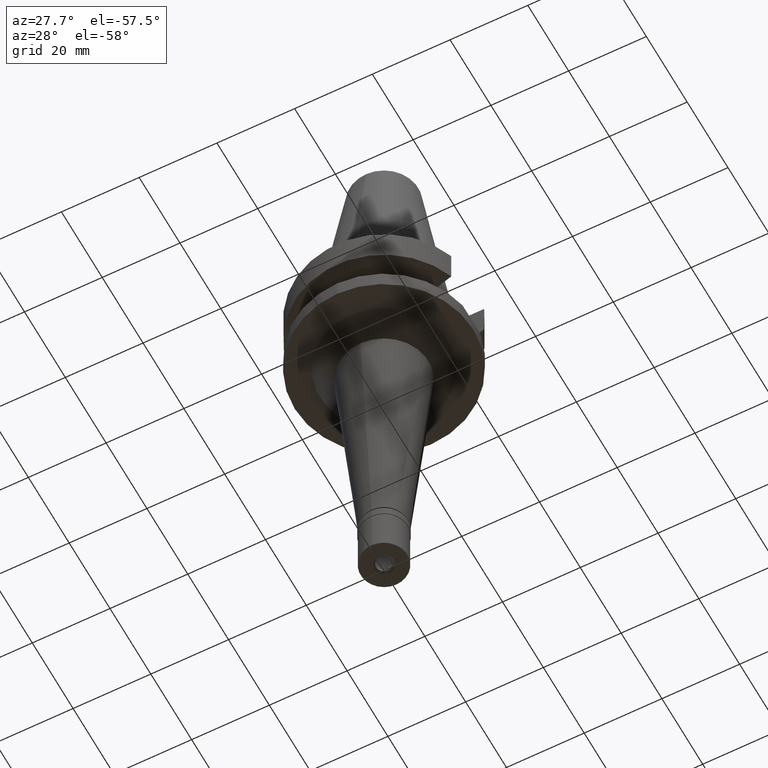
[diagram: clean part render]
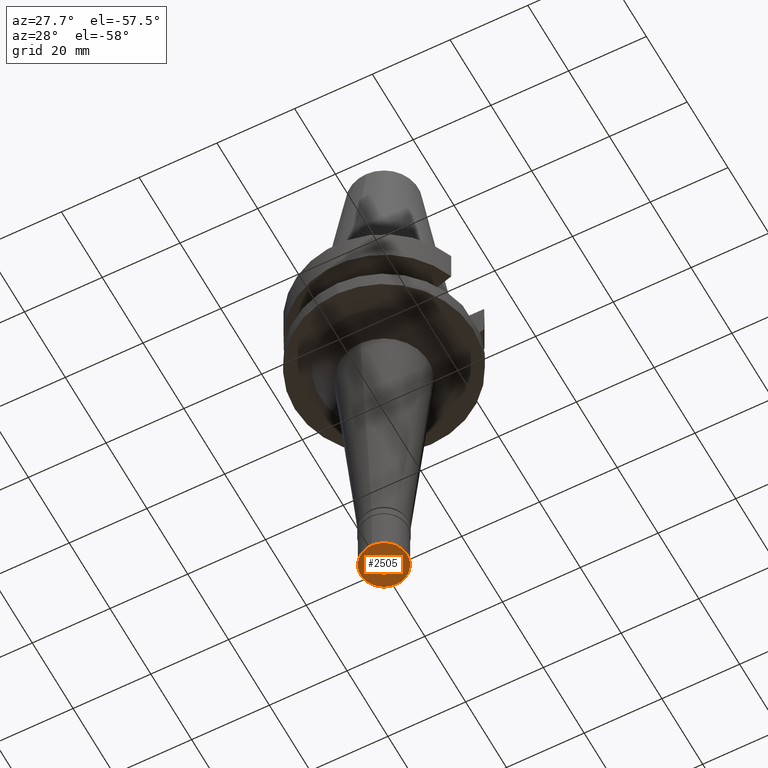
[diagram: same view with one face highlighted and labeled with its STEP entity id]
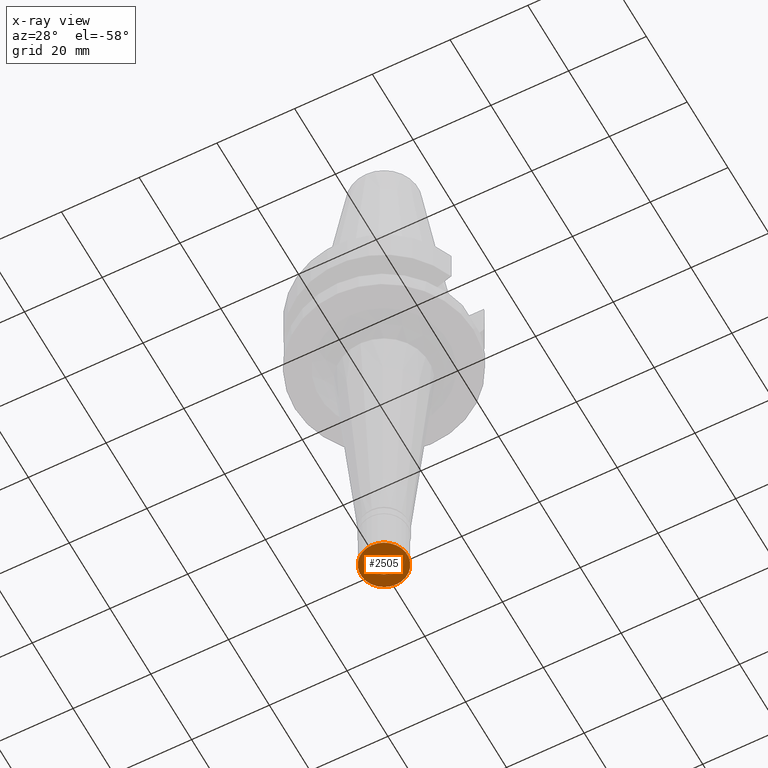
[diagram: x-ray of the same camera — body ghosted, the highlighted face saturated]
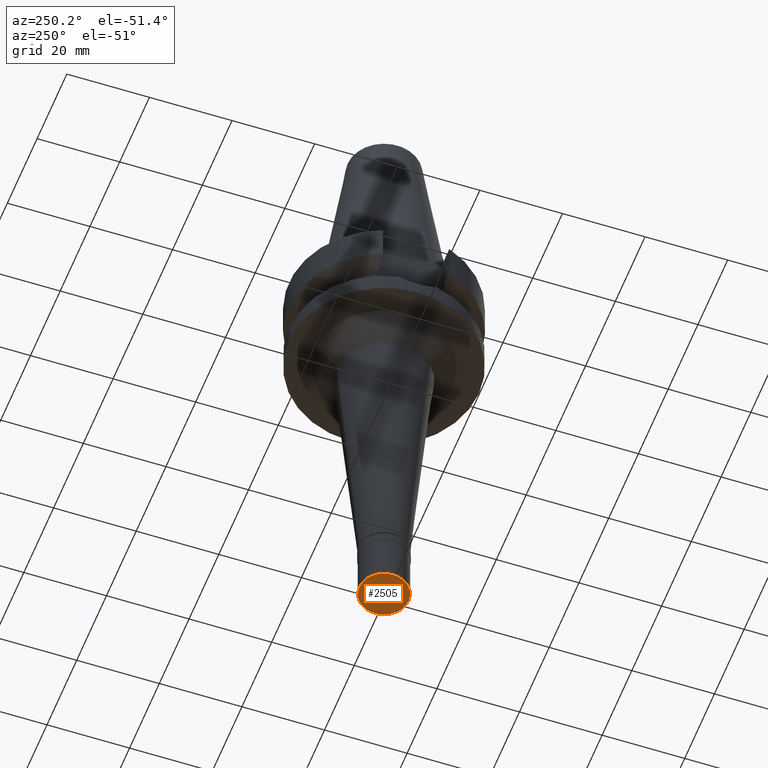
[diagram: same view with one face highlighted and labeled with its STEP entity id]
A machine part, auxiliary view. The second image highlights one B-rep face of the part: STEP entity #2505.
The next image is the same camera in x-ray: the body ghosted, the highlighted face saturated — about 0% of this face is hidden behind the body in this view.
A second angle (auxiliary view) of the same face is appended — the face is thin or edge-on in the first view.
In plain terms, the highlighted planar face has unit normal (0, 0, 1).
Its self-contained STEP definition (entity closure, byte-faithful):
#3 = DIRECTION ( 'NONE',  ( 0.0000000000000000000, -1.000000000000000000, 0.0000000000000000000 ) ) ;
#14 = DIRECTION ( 'NONE',  ( 0.0000000000000000000, 0.0000000000000000000, 1.000000000000000000 ) ) ;
#71 = DIRECTION ( 'NONE',  ( 1.000000000000000000, 0.0000000000000000000, 0.0000000000000000000 ) ) ;
#84 = DIRECTION ( 'NONE',  ( 0.0000000000000000000, 0.0000000000000000000, 1.000000000000000000 ) ) ;
#116 = AXIS2_PLACEMENT_3D ( 'NONE', #1507, #1034, #2873 ) ;
#130 = AXIS2_PLACEMENT_3D ( 'NONE', #656, #1998, #1745 ) ;
#158 = EDGE_LOOP ( 'NONE', ( #302, #1215 ) ) ;
#263 = DIRECTION ( 'NONE',  ( 0.0000000000000000000, 0.0000000000000000000, 1.000000000000000000 ) ) ;
#302 = ORIENTED_EDGE ( 'NONE', *, *, #814, .F. ) ;
#383 = AXIS2_PLACEMENT_3D ( 'NONE', #2285, #14, #3 ) ;
#509 = AXIS2_PLACEMENT_3D ( 'NONE', #2130, #84, #71 ) ;
#656 = CARTESIAN_POINT ( 'NONE',  ( 0.0000000000000000000, 0.0000000000000000000, -14.50000000000000000 ) ) ;
#751 = AXIS2_PLACEMENT_3D ( 'NONE', #1195, #263, #1001 ) ;
#814 = EDGE_CURVE ( 'NONE', #1586, #2869, #1465, .T. ) ;
#858 = CIRCLE ( 'NONE', #383, 6.000000000000000000 ) ;
#1001 = DIRECTION ( 'NONE',  ( 0.0000000000000000000, 1.000000000000000000, 0.0000000000000000000 ) ) ;
#1034 = DIRECTION ( 'NONE',  ( 0.0000000000000000000, 0.0000000000000000000, -1.000000000000000000 ) ) ;
#1052 = VERTEX_POINT ( 'NONE', #2295 ) ;
#1195 = CARTESIAN_POINT ( 'NONE',  ( 0.0000000000000000000, 0.0000000000000000000, -14.50000000000000000 ) ) ;
#1215 = ORIENTED_EDGE ( 'NONE', *, *, #2361, .F. ) ;
#1358 = EDGE_CURVE ( 'NONE', #1052, #2648, #2222, .T. ) ;
#1438 = ORIENTED_EDGE ( 'NONE', *, *, #1358, .F. ) ;
#1446 = CARTESIAN_POINT ( 'NONE',  ( 0.0000000000000000000, -6.000000000000000000, -14.50000000000000000 ) ) ;
#1465 = CIRCLE ( 'NONE', #751, 6.000000000000000000 ) ;
#1507 = CARTESIAN_POINT ( 'NONE',  ( 0.0000000000000000000, 0.0000000000000000000, -14.50000000000000000 ) ) ;
#1586 = VERTEX_POINT ( 'NONE', #2927 ) ;
#1652 = PLANE ( 'NONE',  #509 ) ;
#1745 = DIRECTION ( 'NONE',  ( 0.0000000000000000000, 1.000000000000000000, 0.0000000000000000000 ) ) ;
#1989 = CIRCLE ( 'NONE', #130, 2.550000000000000266 ) ;
#1998 = DIRECTION ( 'NONE',  ( 0.0000000000000000000, 0.0000000000000000000, -1.000000000000000000 ) ) ;
#2115 = FACE_OUTER_BOUND ( 'NONE', #158, .T. ) ;
#2130 = CARTESIAN_POINT ( 'NONE',  ( 0.0000000000000000000, 0.0000000000000000000, -14.50000000000000000 ) ) ;
#2222 = CIRCLE ( 'NONE', #116, 2.550000000000000266 ) ;
#2285 = CARTESIAN_POINT ( 'NONE',  ( 0.0000000000000000000, 0.0000000000000000000, -14.50000000000000000 ) ) ;
#2295 = CARTESIAN_POINT ( 'NONE',  ( 0.0000000000000000000, -2.550000000000000266, -14.50000000000000000 ) ) ;
#2324 = ORIENTED_EDGE ( 'NONE', *, *, #2629, .F. ) ;
#2361 = EDGE_CURVE ( 'NONE', #2869, #1586, #858, .T. ) ;
#2505 = ADVANCED_FACE ( 'NONE', ( #2115, #2589 ), #1652, .F. ) ;
#2572 = EDGE_LOOP ( 'NONE', ( #2324, #1438 ) ) ;
#2589 = FACE_BOUND ( 'NONE', #2572, .T. ) ;
#2629 = EDGE_CURVE ( 'NONE', #2648, #1052, #1989, .T. ) ;
#2648 = VERTEX_POINT ( 'NONE', #2697 ) ;
#2697 = CARTESIAN_POINT ( 'NONE',  ( 0.0000000000000000000, 2.550000000000000266, -14.50000000000000000 ) ) ;
#2869 = VERTEX_POINT ( 'NONE', #1446 ) ;
#2873 = DIRECTION ( 'NONE',  ( 0.0000000000000000000, -1.000000000000000000, 0.0000000000000000000 ) ) ;
#2927 = CARTESIAN_POINT ( 'NONE',  ( 0.0000000000000000000, 6.000000000000000000, -14.50000000000000000 ) ) ;